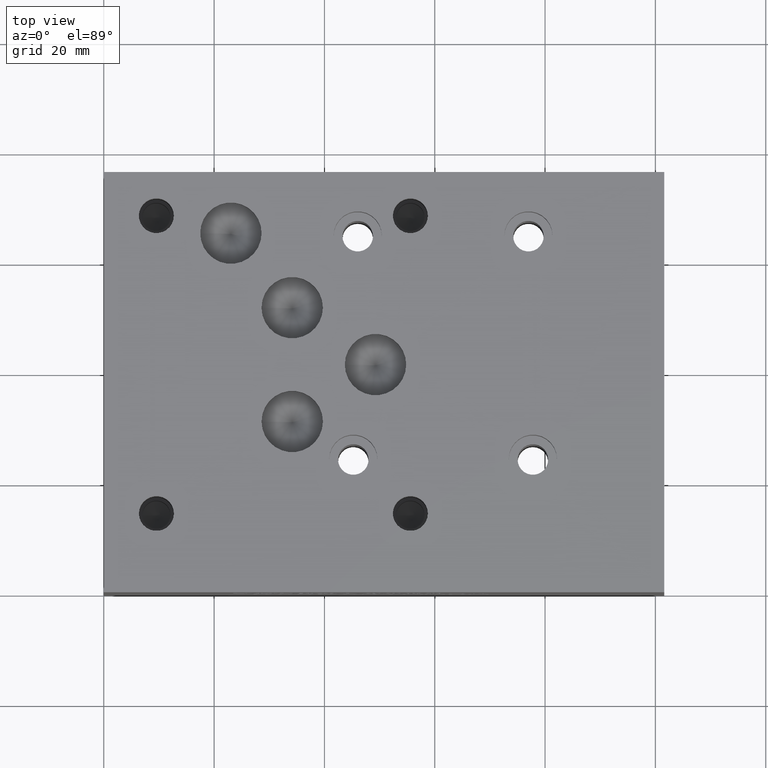
[diagram: clean part render]
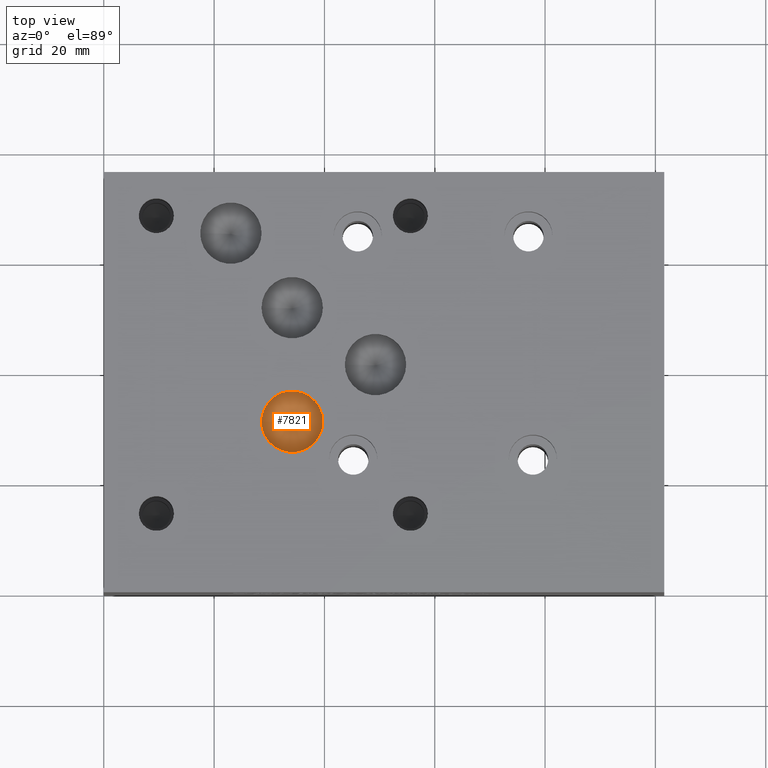
[diagram: same view with one face highlighted and labeled with its STEP entity id]
A machine part, top view. The second image highlights one B-rep face of the part: STEP entity #7821.
In plain terms, the highlighted conical surface has half-angle 60 deg.
Its self-contained STEP definition (entity closure, byte-faithful):
#89=CIRCLE('',#8196,5.5626);
#117=CONICAL_SURFACE('',#8195,2.7813,1.0471975511966);
#857=FACE_OUTER_BOUND('',#1313,.T.);
#1313=EDGE_LOOP('',(#6748,#6749,#6750));
#2136=LINE('',#13150,#2939);
#2939=VECTOR('',#9694,2.7813);
#3642=VERTEX_POINT('',#13147);
#3643=VERTEX_POINT('',#13149);
#4687=EDGE_CURVE('',#3642,#3642,#89,.T.);
#4688=EDGE_CURVE('',#3642,#3643,#2136,.T.);
#6748=ORIENTED_EDGE('',*,*,#4687,.T.);
#6749=ORIENTED_EDGE('',*,*,#4688,.T.);
#6750=ORIENTED_EDGE('',*,*,#4688,.F.);
#7821=ADVANCED_FACE('',(#857),#117,.F.);
#8195=AXIS2_PLACEMENT_3D('',#13146,#9690,#9691);
#8196=AXIS2_PLACEMENT_3D('',#13148,#9692,#9693);
#9690=DIRECTION('center_axis',(0.,0.,1.));
#9691=DIRECTION('ref_axis',(1.,0.,0.));
#9692=DIRECTION('center_axis',(0.,0.,1.));
#9693=DIRECTION('ref_axis',(1.,0.,0.));
#9694=DIRECTION('',(0.866025403784439,1.06057523872491E-16,-0.5));
#13146=CARTESIAN_POINT('Origin',(34.15538,30.95752,33.2826456963029));
#13147=CARTESIAN_POINT('',(28.59278,30.95752,34.88843));
#13148=CARTESIAN_POINT('Origin',(34.15538,30.95752,34.88843));
#13149=CARTESIAN_POINT('',(34.15538,30.95752,31.6768613926058));
#13150=CARTESIAN_POINT('',(31.37408,30.95752,33.2826456963029));